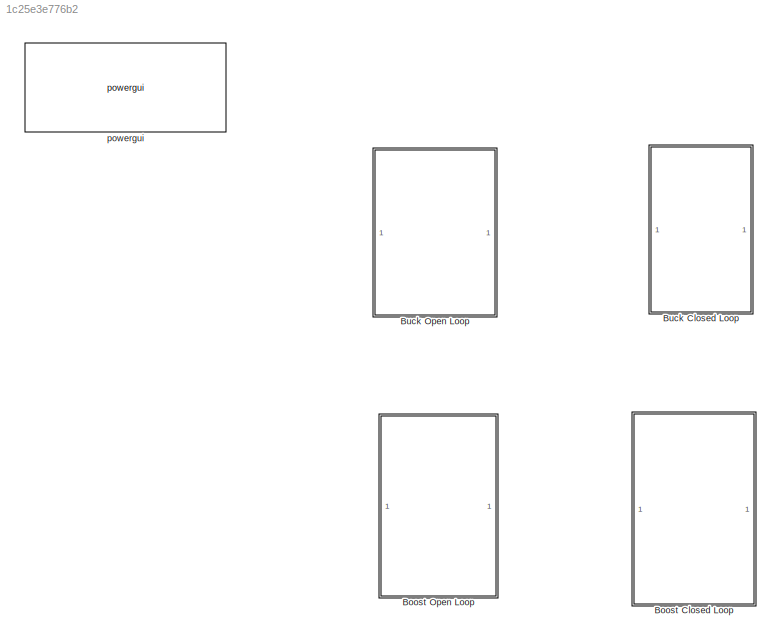
MODEL slx_1c25e3e776b2
KIND model
CONFIG AbsTol = auto
CONFIG EnableMultiTasking = off
CONFIG FixedStep = auto
CONFIG MaxStep = auto
CONFIG MinStep = auto
CONFIG RelTol = 1e-3
CONFIG SampleTimeConstraint = Unconstrained
CONFIG SolverName = VariableStepAuto
CONFIG StartTime = 0.0
CONFIG StopTime = 0.1
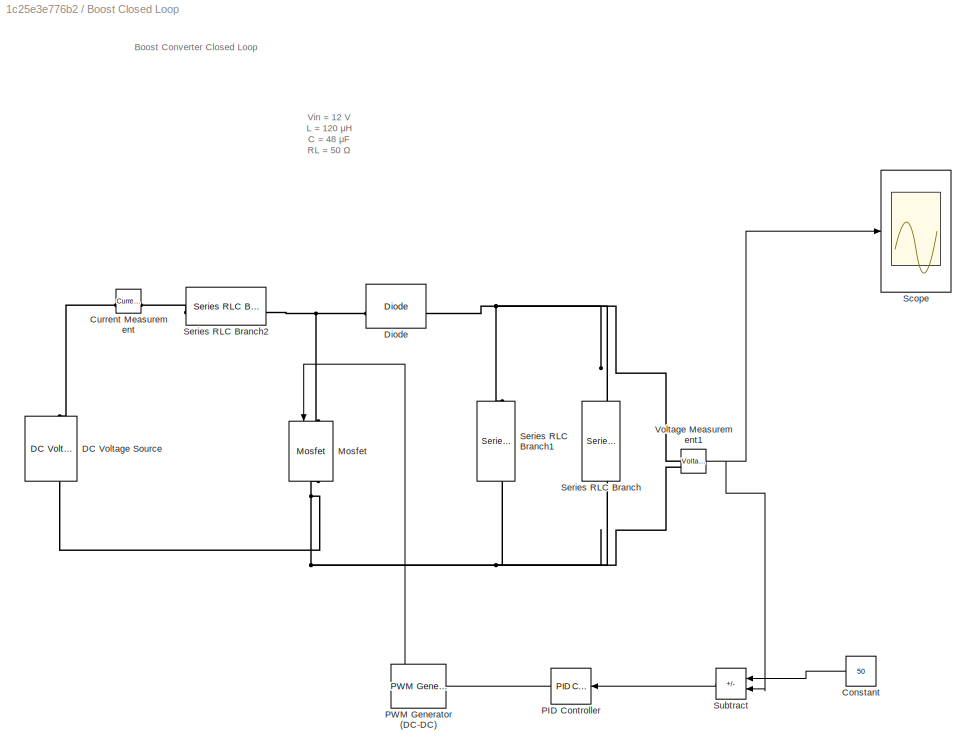
BLOCK [SubSystem] Boost Closed Loop
BLOCK [Constant] Boost Closed Loop/Constant
  NameLocation = top
  Value = 50
BLOCK [Reference] Boost Closed Loop/Current Measurement  REF=spsCurrentMeasurementLib/Current Measurement
  LibrarySourceBlock = sps_lib/Sensors and Measurements/Current Measurement
  SourceBlock = spsCurrentMeasurementLib/Current Measurement
  SourceType = Current Measurement
  UserDataPersistent = on
BLOCK [Reference] Boost Closed Loop/DC Voltage Source  REF=spsDCVoltageSourceLib/DC Voltage Source
  LibrarySourceBlock = sps_lib/Sources/DC Voltage Source
  SourceBlock = spsDCVoltageSourceLib/DC Voltage Source
  SourceType = DC Voltage Source
BLOCK [Reference] Boost Closed Loop/Diode  REF=spsDiodeLib/Diode
  LibrarySourceBlock = sps_lib/Power Electronics/Diode
  SourceBlock = spsDiodeLib/Diode
  SourceType = Diode
BLOCK [Reference] Boost Closed Loop/Mosfet  REF=spsMosfetLib/Mosfet
  LibrarySourceBlock = sps_lib/Power Electronics/Mosfet
  NameLocation = left
  SourceBlock = spsMosfetLib/Mosfet
  SourceType = Mosfet
BLOCK [Reference] Boost Closed Loop/PID Controller  REF=slpidlib/PID Controller
  LibrarySourceBlock = simulink/Continuous/PID Controller
  NameLocation = top
  SourceBlock = slpidlib/PID Controller
  SourceType = PID 1dof
BLOCK [Reference] Boost Closed Loop/PWM Generator (DC-DC)  REF=spsPWMGeneratorDCDCLib/PWM Generator
(DC-DC)
  LibrarySourceBlock = sps_lib/Power Electronics/Power Electronics Control/PWM Generator\n(DC-DC)
  NameLocation = top
  SourceBlock = spsPWMGeneratorDCDCLib/PWM Generator\n(DC-DC)
  SourceType = PWM Generator (DC-DC)
BLOCK [Scope] Boost Closed Loop/Scope
  Floating = off
  NumInputPorts = 1
  ScopeSpecificationString = Simulink.scopes.TimeScopeBlockCfg('CurrentConfiguration', extmgr.ConfigurationSet(extmgr.Configuration('Core','General UI',true,'FigureColor',[1 1 1]),extmgr.Configuration('Core','Source UI',true),extmgr.Configuration('Sources','WiredSimulink',true,'DataLoggingVariableName','ScopeData1'),extmgr.Configuration('Visuals','Time Domain',true,'SerializedDisplays',{struct('MinYLimReal','-2.74523','MaxYLi...<+1588ch>
BLOCK [Reference] Boost Closed Loop/Series RLC Branch  REF=spsSeriesRLCBranchLib/Series RLC Branch
  LibrarySourceBlock = sps_lib/Passives/Series RLC Branch
  NameLocation = left
  SourceBlock = spsSeriesRLCBranchLib/Series RLC Branch
  SourceType = Series RLC Branch
BLOCK [Reference] Boost Closed Loop/Series RLC Branch1  REF=spsSeriesRLCBranchLib/Series RLC Branch
  LibrarySourceBlock = sps_lib/Passives/Series RLC Branch
  NameLocation = left
  SourceBlock = spsSeriesRLCBranchLib/Series RLC Branch
  SourceType = Series RLC Branch
BLOCK [Reference] Boost Closed Loop/Series RLC Branch2  REF=spsSeriesRLCBranchLib/Series RLC Branch
  LibrarySourceBlock = sps_lib/Passives/Series RLC Branch
  SourceBlock = spsSeriesRLCBranchLib/Series RLC Branch
  SourceType = Series RLC Branch
BLOCK [Sum] Boost Closed Loop/Subtract
  IconShape = rectangular
  Inputs = +-
  NameLocation = top
BLOCK [Reference] Boost Closed Loop/Voltage Measurement1  REF=spsVoltageMeasurementLib/Voltage Measurement
  LibrarySourceBlock = sps_lib/Sensors and Measurements/Voltage Measurement
  SourceBlock = spsVoltageMeasurementLib/Voltage Measurement
  SourceType = Voltage Measurement
  UserDataPersistent = on
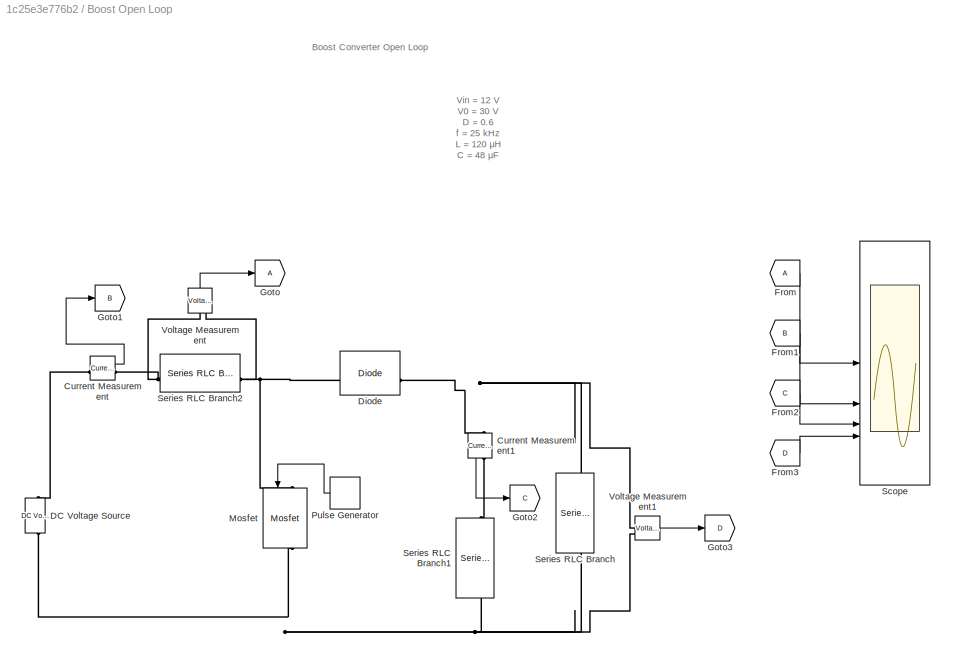
BLOCK [SubSystem] Boost Open Loop
BLOCK [Reference] Boost Open Loop/Current Measurement  REF=spsCurrentMeasurementLib/Current Measurement
  LibrarySourceBlock = sps_lib/Sensors and Measurements/Current Measurement
  SourceBlock = spsCurrentMeasurementLib/Current Measurement
  SourceType = Current Measurement
  UserDataPersistent = on
BLOCK [Reference] Boost Open Loop/Current Measurement1  REF=spsCurrentMeasurementLib/Current Measurement
  LibrarySourceBlock = sps_lib/Sensors and Measurements/Current Measurement
  NameLocation = left
  SourceBlock = spsCurrentMeasurementLib/Current Measurement
  SourceType = Current Measurement
  UserDataPersistent = on
BLOCK [Reference] Boost Open Loop/DC Voltage Source  REF=spsDCVoltageSourceLib/DC Voltage Source
  LibrarySourceBlock = sps_lib/Sources/DC Voltage Source
  SourceBlock = spsDCVoltageSourceLib/DC Voltage Source
  SourceType = DC Voltage Source
BLOCK [Reference] Boost Open Loop/Diode  REF=spsDiodeLib/Diode
  LibrarySourceBlock = sps_lib/Power Electronics/Diode
  SourceBlock = spsDiodeLib/Diode
  SourceType = Diode
BLOCK [From] Boost Open Loop/From
BLOCK [From] Boost Open Loop/From1
  GotoTag = B
BLOCK [From] Boost Open Loop/From2
  GotoTag = C
BLOCK [From] Boost Open Loop/From3
  GotoTag = D
BLOCK [Goto] Boost Open Loop/Goto
BLOCK [Goto] Boost Open Loop/Goto1
  GotoTag = B
BLOCK [Goto] Boost Open Loop/Goto2
  GotoTag = C
BLOCK [Goto] Boost Open Loop/Goto3
  GotoTag = D
BLOCK [Reference] Boost Open Loop/Mosfet  REF=spsMosfetLib/Mosfet
  LibrarySourceBlock = sps_lib/Power Electronics/Mosfet
  NameLocation = left
  SourceBlock = spsMosfetLib/Mosfet
  SourceType = Mosfet
BLOCK [DiscretePulseGenerator] Boost Open Loop/Pulse Generator
  NameLocation = top
  Period = 1/25000
  PulseType = Time based
  PulseWidth = 60
BLOCK [Scope] Boost Open Loop/Scope
  Floating = off
  NumInputPorts = 4
  ScopeSpecificationString = Simulink.scopes.TimeScopeBlockCfg('CurrentConfiguration', extmgr.ConfigurationSet(extmgr.Configuration('Core','General UI',true,'FigureColor',[1 1 1]),extmgr.Configuration('Core','Source UI',true),extmgr.Configuration('Sources','WiredSimulink',true,'DataLoggingVariableName','ScopeData1'),extmgr.Configuration('Visuals','Time Domain',true,'SerializedDisplays',{struct('MinYLimReal','-44.3751','MaxYLi...<+4064ch>
BLOCK [Reference] Boost Open Loop/Series RLC Branch  REF=spsSeriesRLCBranchLib/Series RLC Branch
  LibrarySourceBlock = sps_lib/Passives/Series RLC Branch
  NameLocation = left
  SourceBlock = spsSeriesRLCBranchLib/Series RLC Branch
  SourceType = Series RLC Branch
BLOCK [Reference] Boost Open Loop/Series RLC Branch1  REF=spsSeriesRLCBranchLib/Series RLC Branch
  LibrarySourceBlock = sps_lib/Passives/Series RLC Branch
  NameLocation = left
  SourceBlock = spsSeriesRLCBranchLib/Series RLC Branch
  SourceType = Series RLC Branch
BLOCK [Reference] Boost Open Loop/Series RLC Branch2  REF=spsSeriesRLCBranchLib/Series RLC Branch
  LibrarySourceBlock = sps_lib/Passives/Series RLC Branch
  SourceBlock = spsSeriesRLCBranchLib/Series RLC Branch
  SourceType = Series RLC Branch
BLOCK [Reference] Boost Open Loop/Voltage Measurement  REF=spsVoltageMeasurementLib/Voltage Measurement
  LibrarySourceBlock = sps_lib/Sensors and Measurements/Voltage Measurement
  NameLocation = right
  SourceBlock = spsVoltageMeasurementLib/Voltage Measurement
  SourceType = Voltage Measurement
  UserDataPersistent = on
BLOCK [Reference] Boost Open Loop/Voltage Measurement1  REF=spsVoltageMeasurementLib/Voltage Measurement
  LibrarySourceBlock = sps_lib/Sensors and Measurements/Voltage Measurement
  SourceBlock = spsVoltageMeasurementLib/Voltage Measurement
  SourceType = Voltage Measurement
  UserDataPersistent = on
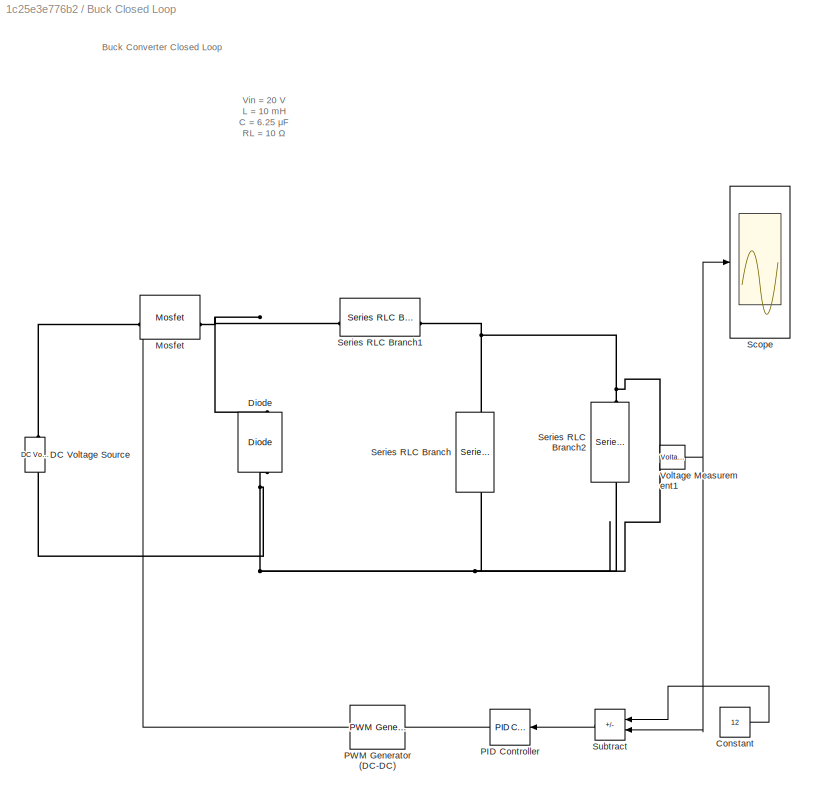
BLOCK [SubSystem] Buck Closed Loop
BLOCK [Constant] Buck Closed Loop/Constant
  Value = 12
BLOCK [Reference] Buck Closed Loop/DC Voltage Source  REF=spsDCVoltageSourceLib/DC Voltage Source
  LibrarySourceBlock = sps_lib/Sources/DC Voltage Source
  SourceBlock = spsDCVoltageSourceLib/DC Voltage Source
  SourceType = DC Voltage Source
BLOCK [Reference] Buck Closed Loop/Diode  REF=spsDiodeLib/Diode
  LibrarySourceBlock = sps_lib/Power Electronics/Diode
  NameLocation = right
  SourceBlock = spsDiodeLib/Diode
  SourceType = Diode
BLOCK [Reference] Buck Closed Loop/Mosfet  REF=spsMosfetLib/Mosfet
  LibrarySourceBlock = sps_lib/Power Electronics/Mosfet
  SourceBlock = spsMosfetLib/Mosfet
  SourceType = Mosfet
BLOCK [Reference] Buck Closed Loop/PID Controller  REF=slpidlib/PID Controller
  LibrarySourceBlock = simulink/Continuous/PID Controller
  NameLocation = top
  SourceBlock = slpidlib/PID Controller
  SourceType = PID 1dof
BLOCK [Reference] Buck Closed Loop/PWM Generator (DC-DC)  REF=spsPWMGeneratorDCDCLib/PWM Generator
(DC-DC)
  LibrarySourceBlock = sps_lib/Power Electronics/Power Electronics Control/PWM Generator\n(DC-DC)
  NameLocation = top
  SourceBlock = spsPWMGeneratorDCDCLib/PWM Generator\n(DC-DC)
  SourceType = PWM Generator (DC-DC)
BLOCK [Scope] Buck Closed Loop/Scope
  Floating = off
  NumInputPorts = 1
  ScopeSpecificationString = Simulink.scopes.TimeScopeBlockCfg('CurrentConfiguration', extmgr.ConfigurationSet(extmgr.Configuration('Core','General UI',true,'FigureColor',[1 1 1]),extmgr.Configuration('Core','Source UI',true),extmgr.Configuration('Sources','WiredSimulink',true,'DataLoggingVariableName','ScopeData2'),extmgr.Configuration('Visuals','Time Domain',true,'SerializedDisplays',{struct('MinYLimReal','-1.45249','MaxYLi...<+1617ch>
BLOCK [Reference] Buck Closed Loop/Series RLC Branch  REF=spsSeriesRLCBranchLib/Series RLC Branch
  LibrarySourceBlock = sps_lib/Passives/Series RLC Branch
  NameLocation = left
  SourceBlock = spsSeriesRLCBranchLib/Series RLC Branch
  SourceType = Series RLC Branch
BLOCK [Reference] Buck Closed Loop/Series RLC Branch1  REF=spsSeriesRLCBranchLib/Series RLC Branch
  LibrarySourceBlock = sps_lib/Passives/Series RLC Branch
  SourceBlock = spsSeriesRLCBranchLib/Series RLC Branch
  SourceType = Series RLC Branch
BLOCK [Reference] Buck Closed Loop/Series RLC Branch2  REF=spsSeriesRLCBranchLib/Series RLC Branch
  LibrarySourceBlock = sps_lib/Passives/Series RLC Branch
  NameLocation = left
  SourceBlock = spsSeriesRLCBranchLib/Series RLC Branch
  SourceType = Series RLC Branch
BLOCK [Sum] Buck Closed Loop/Subtract
  IconShape = rectangular
  Inputs = +-
  NameLocation = top
BLOCK [Reference] Buck Closed Loop/Voltage Measurement1  REF=spsVoltageMeasurementLib/Voltage Measurement
  LibrarySourceBlock = sps_lib/Sensors and Measurements/Voltage Measurement
  SourceBlock = spsVoltageMeasurementLib/Voltage Measurement
  SourceType = Voltage Measurement
  UserDataPersistent = on
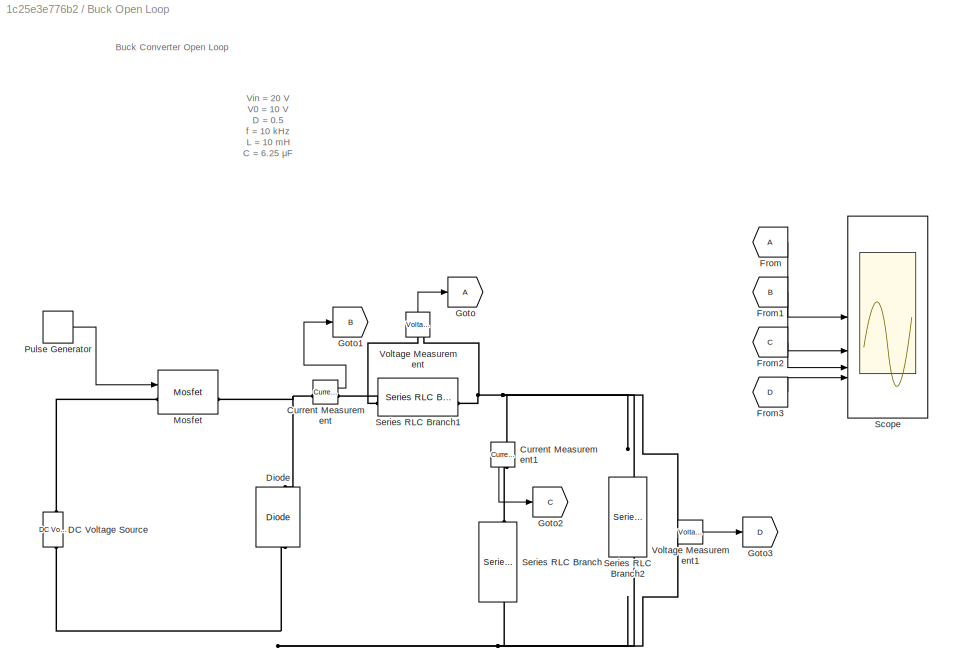
BLOCK [SubSystem] Buck Open Loop
BLOCK [Reference] Buck Open Loop/Current Measurement  REF=spsCurrentMeasurementLib/Current Measurement
  LibrarySourceBlock = sps_lib/Sensors and Measurements/Current Measurement
  SourceBlock = spsCurrentMeasurementLib/Current Measurement
  SourceType = Current Measurement
  UserDataPersistent = on
BLOCK [Reference] Buck Open Loop/Current Measurement1  REF=spsCurrentMeasurementLib/Current Measurement
  LibrarySourceBlock = sps_lib/Sensors and Measurements/Current Measurement
  NameLocation = left
  SourceBlock = spsCurrentMeasurementLib/Current Measurement
  SourceType = Current Measurement
  UserDataPersistent = on
BLOCK [Reference] Buck Open Loop/DC Voltage Source  REF=spsDCVoltageSourceLib/DC Voltage Source
  LibrarySourceBlock = sps_lib/Sources/DC Voltage Source
  SourceBlock = spsDCVoltageSourceLib/DC Voltage Source
  SourceType = DC Voltage Source
BLOCK [Reference] Buck Open Loop/Diode  REF=spsDiodeLib/Diode
  LibrarySourceBlock = sps_lib/Power Electronics/Diode
  NameLocation = right
  SourceBlock = spsDiodeLib/Diode
  SourceType = Diode
BLOCK [From] Buck Open Loop/From
BLOCK [From] Buck Open Loop/From1
  GotoTag = B
BLOCK [From] Buck Open Loop/From2
  GotoTag = C
BLOCK [From] Buck Open Loop/From3
  GotoTag = D
BLOCK [Goto] Buck Open Loop/Goto
BLOCK [Goto] Buck Open Loop/Goto1
  GotoTag = B
BLOCK [Goto] Buck Open Loop/Goto2
  GotoTag = C
BLOCK [Goto] Buck Open Loop/Goto3
  GotoTag = D
BLOCK [Reference] Buck Open Loop/Mosfet  REF=spsMosfetLib/Mosfet
  LibrarySourceBlock = sps_lib/Power Electronics/Mosfet
  SourceBlock = spsMosfetLib/Mosfet
  SourceType = Mosfet
BLOCK [DiscretePulseGenerator] Buck Open Loop/Pulse Generator
  Period = 1/10000
  PulseType = Time based
  PulseWidth = 50
BLOCK [Scope] Buck Open Loop/Scope
  Floating = off
  NumInputPorts = 4
  ScopeSpecificationString = Simulink.scopes.TimeScopeBlockCfg('CurrentConfiguration', extmgr.ConfigurationSet(extmgr.Configuration('Core','General UI',true),extmgr.Configuration('Core','Source UI',true),extmgr.Configuration('Sources','WiredSimulink',true,'DataLogging',true),extmgr.Configuration('Visuals','Time Domain',true,'SerializedDisplays',{struct('MinYLimReal','-13.00303','MaxYLimReal','13.00339','YLabelReal','','MinYLi...<+3458ch>
BLOCK [Reference] Buck Open Loop/Series RLC Branch  REF=spsSeriesRLCBranchLib/Series RLC Branch
  LibrarySourceBlock = sps_lib/Passives/Series RLC Branch
  NameLocation = left
  SourceBlock = spsSeriesRLCBranchLib/Series RLC Branch
  SourceType = Series RLC Branch
BLOCK [Reference] Buck Open Loop/Series RLC Branch1  REF=spsSeriesRLCBranchLib/Series RLC Branch
  LibrarySourceBlock = sps_lib/Passives/Series RLC Branch
  SourceBlock = spsSeriesRLCBranchLib/Series RLC Branch
  SourceType = Series RLC Branch
BLOCK [Reference] Buck Open Loop/Series RLC Branch2  REF=spsSeriesRLCBranchLib/Series RLC Branch
  LibrarySourceBlock = sps_lib/Passives/Series RLC Branch
  NameLocation = left
  SourceBlock = spsSeriesRLCBranchLib/Series RLC Branch
  SourceType = Series RLC Branch
BLOCK [Reference] Buck Open Loop/Voltage Measurement  REF=spsVoltageMeasurementLib/Voltage Measurement
  LibrarySourceBlock = sps_lib/Sensors and Measurements/Voltage Measurement
  NameLocation = right
  SourceBlock = spsVoltageMeasurementLib/Voltage Measurement
  SourceType = Voltage Measurement
  UserDataPersistent = on
BLOCK [Reference] Buck Open Loop/Voltage Measurement1  REF=spsVoltageMeasurementLib/Voltage Measurement
  LibrarySourceBlock = sps_lib/Sensors and Measurements/Voltage Measurement
  SourceBlock = spsVoltageMeasurementLib/Voltage Measurement
  SourceType = Voltage Measurement
  UserDataPersistent = on
BLOCK [Reference] powergui  REF=sps_lib/powergui
  LibrarySourceBlock = sps_lib/powergui
  Priority = 1
  SourceBlock = sps_lib/powergui
  SourceType = PSB option menu block
ANNOTATION Boost Closed Loop: V in = 12 V L = 120 μH C = 48 μ F R L = 50 Ω
ANNOTATION Boost Closed Loop: Boost Converter Closed Loop
ANNOTATION Boost Open Loop: Boost Converter Open Loop
ANNOTATION Boost Open Loop: V in = 12 V V 0 = 30 V D = 0.6 f = 25 kHz L = 120 μH C = 48 μ F R L = 50 Ω
ANNOTATION Buck Closed Loop: Buck Converter Closed Loop
ANNOTATION Buck Closed Loop: V in = 20 V L = 10 mH C = 6.25 μ F R L = 10 Ω
ANNOTATION Buck Open Loop: Buck Converter Open Loop
ANNOTATION Buck Open Loop: V in = 20 V V 0 = 10 V D = 0.5 f = 10 kHz L = 10 mH C = 6.25 μ F R L = 10 Ω
LINE Boost Closed Loop/Constant:1 -> Boost Closed Loop/Subtract:1
LINE Boost Closed Loop/PID Controller:1 -> Boost Closed Loop/PWM Generator (DC-DC):1
LINE Boost Closed Loop/PWM Generator (DC-DC):1 -> Boost Closed Loop/Mosfet:1
LINE Boost Closed Loop/Subtract:1 -> Boost Closed Loop/PID Controller:1
NET Boost Closed Loop/Voltage Measurement1:1 -> Boost Closed Loop/Scope:1, Boost Closed Loop/Subtract:2
LINE Boost Open Loop/Current Measurement1:1 -> Boost Open Loop/Goto2:1
LINE Boost Open Loop/Current Measurement:1 -> Boost Open Loop/Goto1:1
LINE Boost Open Loop/From1:1 -> Boost Open Loop/Scope:2
LINE Boost Open Loop/From2:1 -> Boost Open Loop/Scope:3
LINE Boost Open Loop/From3:1 -> Boost Open Loop/Scope:4
LINE Boost Open Loop/From:1 -> Boost Open Loop/Scope:1
LINE Boost Open Loop/Pulse Generator:1 -> Boost Open Loop/Mosfet:1
LINE Boost Open Loop/Voltage Measurement1:1 -> Boost Open Loop/Goto3:1
LINE Boost Open Loop/Voltage Measurement:1 -> Boost Open Loop/Goto:1
LINE Buck Closed Loop/Constant:1 -> Buck Closed Loop/Subtract:1
LINE Buck Closed Loop/PID Controller:1 -> Buck Closed Loop/PWM Generator (DC-DC):1
LINE Buck Closed Loop/PWM Generator (DC-DC):1 -> Buck Closed Loop/Mosfet:1
LINE Buck Closed Loop/Subtract:1 -> Buck Closed Loop/PID Controller:1
NET Buck Closed Loop/Voltage Measurement1:1 -> Buck Closed Loop/Scope:1, Buck Closed Loop/Subtract:2
LINE Buck Open Loop/Current Measurement1:1 -> Buck Open Loop/Goto2:1
LINE Buck Open Loop/Current Measurement:1 -> Buck Open Loop/Goto1:1
LINE Buck Open Loop/From1:1 -> Buck Open Loop/Scope:2
LINE Buck Open Loop/From2:1 -> Buck Open Loop/Scope:3
LINE Buck Open Loop/From3:1 -> Buck Open Loop/Scope:4
LINE Buck Open Loop/From:1 -> Buck Open Loop/Scope:1
LINE Buck Open Loop/Pulse Generator:1 -> Buck Open Loop/Mosfet:1
LINE Buck Open Loop/Voltage Measurement1:1 -> Buck Open Loop/Goto3:1
LINE Buck Open Loop/Voltage Measurement:1 -> Buck Open Loop/Goto:1
PLINE Boost Closed Loop/Current Measurement:LConn1 -- Boost Closed Loop/DC Voltage Source:RConn1
PLINE Boost Closed Loop/Current Measurement:RConn1 -- Boost Closed Loop/Series RLC Branch2:LConn1
PNET net1: Boost Closed Loop/DC Voltage Source:LConn1 -- Boost Closed Loop/Mosfet:RConn1 -- Boost Closed Loop/Series RLC Branch1:RConn1 -- Boost Closed Loop/Series RLC Branch:RConn1 -- Boost Closed Loop/Voltage Measurement1:LConn2
PNET net2: Boost Closed Loop/Diode:LConn1 -- Boost Closed Loop/Mosfet:LConn1 -- Boost Closed Loop/Series RLC Branch2:RConn1
PNET net3: Boost Closed Loop/Diode:RConn1 -- Boost Closed Loop/Series RLC Branch1:LConn1 -- Boost Closed Loop/Series RLC Branch:LConn1 -- Boost Closed Loop/Voltage Measurement1:LConn1
PNET net4: Boost Open Loop/Current Measurement1:LConn1 -- Boost Open Loop/Diode:RConn1 -- Boost Open Loop/Series RLC Branch:LConn1 -- Boost Open Loop/Voltage Measurement1:LConn1
PLINE Boost Open Loop/Current Measurement1:RConn1 -- Boost Open Loop/Series RLC Branch1:LConn1
PLINE Boost Open Loop/Current Measurement:LConn1 -- Boost Open Loop/DC Voltage Source:RConn1
PNET net5: Boost Open Loop/Current Measurement:RConn1 -- Boost Open Loop/Series RLC Branch2:LConn1 -- Boost Open Loop/Voltage Measurement:LConn1
PNET net6: Boost Open Loop/DC Voltage Source:LConn1 -- Boost Open Loop/Mosfet:RConn1 -- Boost Open Loop/Series RLC Branch1:RConn1 -- Boost Open Loop/Series RLC Branch:RConn1 -- Boost Open Loop/Voltage Measurement1:LConn2
PNET net7: Boost Open Loop/Diode:LConn1 -- Boost Open Loop/Mosfet:LConn1 -- Boost Open Loop/Series RLC Branch2:RConn1 -- Boost Open Loop/Voltage Measurement:LConn2
PNET net8: Buck Closed Loop/DC Voltage Source:LConn1 -- Buck Closed Loop/Diode:LConn1 -- Buck Closed Loop/Series RLC Branch2:RConn1 -- Buck Closed Loop/Series RLC Branch:RConn1 -- Buck Closed Loop/Voltage Measurement1:LConn2
PLINE Buck Closed Loop/DC Voltage Source:RConn1 -- Buck Closed Loop/Mosfet:LConn1
PNET net9: Buck Closed Loop/Diode:RConn1 -- Buck Closed Loop/Mosfet:RConn1 -- Buck Closed Loop/Series RLC Branch1:LConn1
PNET net10: Buck Closed Loop/Series RLC Branch1:RConn1 -- Buck Closed Loop/Series RLC Branch2:LConn1 -- Buck Closed Loop/Series RLC Branch:LConn1 -- Buck Closed Loop/Voltage Measurement1:LConn1
PNET net11: Buck Open Loop/Current Measurement1:LConn1 -- Buck Open Loop/Series RLC Branch1:RConn1 -- Buck Open Loop/Series RLC Branch2:LConn1 -- Buck Open Loop/Voltage Measurement1:LConn1 -- Buck Open Loop/Voltage Measurement:LConn2
PLINE Buck Open Loop/Current Measurement1:RConn1 -- Buck Open Loop/Series RLC Branch:LConn1
PNET net12: Buck Open Loop/Current Measurement:LConn1 -- Buck Open Loop/Diode:RConn1 -- Buck Open Loop/Mosfet:RConn1
PNET net13: Buck Open Loop/Current Measurement:RConn1 -- Buck Open Loop/Series RLC Branch1:LConn1 -- Buck Open Loop/Voltage Measurement:LConn1
PNET net14: Buck Open Loop/DC Voltage Source:LConn1 -- Buck Open Loop/Diode:LConn1 -- Buck Open Loop/Series RLC Branch2:RConn1 -- Buck Open Loop/Series RLC Branch:RConn1 -- Buck Open Loop/Voltage Measurement1:LConn2
PLINE Buck Open Loop/DC Voltage Source:RConn1 -- Buck Open Loop/Mosfet:LConn1
note: NET lines group one-source signal fan-out (src -> all destinations, sorted); 1:1 wires keep LINE; PNET lines group multi-terminal physical nets as a canonical sorted terminal list (undirected conserving connections); 2-terminal nets keep the pairwise PLINE form
